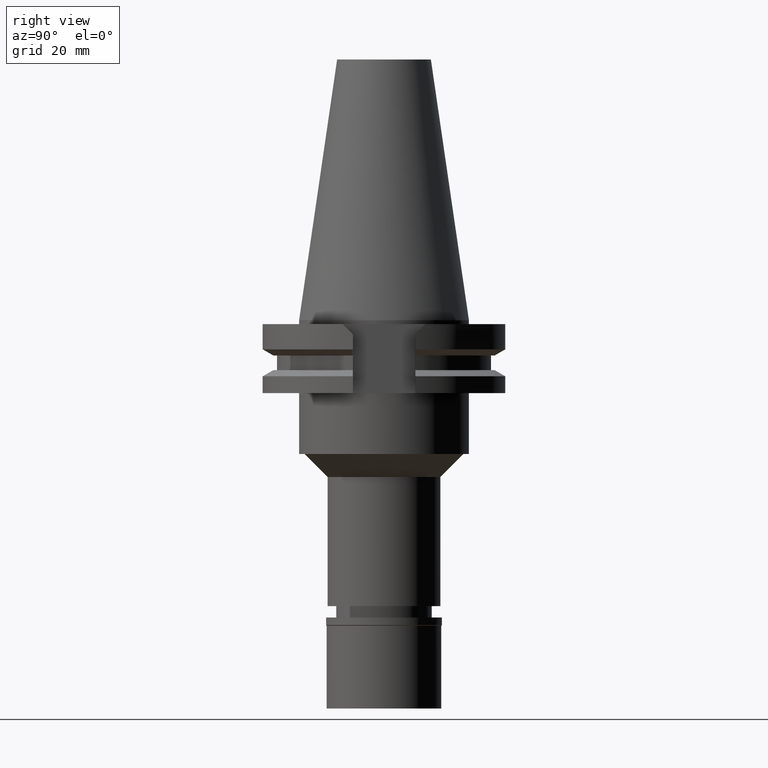
[diagram: clean part render]
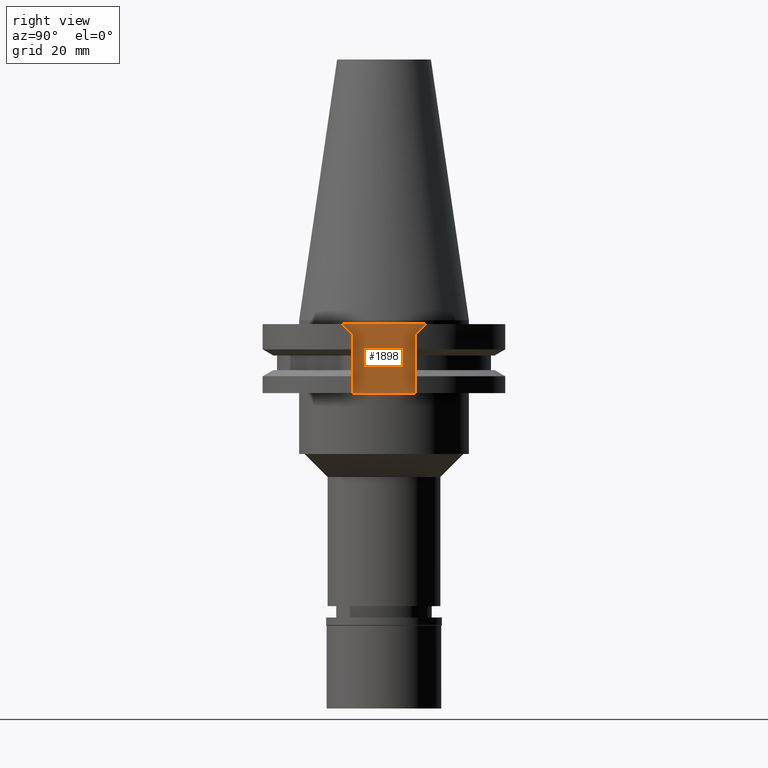
[diagram: same view with one face highlighted and labeled with its STEP entity id]
A machine part, right view. The second image highlights one B-rep face of the part: STEP entity #1898.
In plain terms, the highlighted planar face has unit normal (1, 0, 0).
Its self-contained STEP definition (entity closure, byte-faithful):
#1 = VECTOR ( 'NONE', #2464, 1000.000000000000000 ) ;
#49 = CARTESIAN_POINT ( 'NONE',  ( 22.57000000000000028, 8.189999999999999503, -3.700000000000000178 ) ) ;
#86 = CARTESIAN_POINT ( 'NONE',  ( 22.57000000000000028, -8.189999999999999503, -3.700000000000000178 ) ) ;
#159 = CARTESIAN_POINT ( 'NONE',  ( 22.57000000000000028, 8.189999999999999503, -19.05000000000000071 ) ) ;
#203 = CARTESIAN_POINT ( 'NONE',  ( 22.57000000000000028, 8.189999999999999503, -19.05000000000000071 ) ) ;
#251 = DIRECTION ( 'NONE',  ( 0.0000000000000000000, 0.0000000000000000000, 1.000000000000000000 ) ) ;
#265 = CARTESIAN_POINT ( 'NONE',  ( 22.57000000000000028, 10.89000000000000057, -1.000000000000000000 ) ) ;
#335 = EDGE_LOOP ( 'NONE', ( #1823, #2268, #515, #2763, #466, #1316 ) ) ;
#428 = EDGE_CURVE ( 'NONE', #1818, #1956, #2419, .T. ) ;
#463 = DIRECTION ( 'NONE',  ( 0.0000000000000000000, 1.000000000000000000, 0.0000000000000000000 ) ) ;
#466 = ORIENTED_EDGE ( 'NONE', *, *, #1431, .F. ) ;
#515 = ORIENTED_EDGE ( 'NONE', *, *, #428, .T. ) ;
#527 = CARTESIAN_POINT ( 'NONE',  ( 22.57000000000000028, -10.89000000000000057, -1.000000000000000000 ) ) ;
#638 = CARTESIAN_POINT ( 'NONE',  ( 22.57000000000000028, -8.189999999999999503, -3.700000000000000178 ) ) ;
#768 = AXIS2_PLACEMENT_3D ( 'NONE', #2543, #1284, #463 ) ;
#822 = DIRECTION ( 'NONE',  ( 0.0000000000000000000, -0.7071067811865474617, 0.7071067811865474617 ) ) ;
#954 = VECTOR ( 'NONE', #2075, 1000.000000000000000 ) ;
#1284 = DIRECTION ( 'NONE',  ( 1.000000000000000000, 0.0000000000000000000, 0.0000000000000000000 ) ) ;
#1316 = ORIENTED_EDGE ( 'NONE', *, *, #3044, .F. ) ;
#1354 = CARTESIAN_POINT ( 'NONE',  ( 22.57000000000000028, 10.89000000000000057, -1.000000000000000000 ) ) ;
#1431 = EDGE_CURVE ( 'NONE', #1997, #2466, #1534, .T. ) ;
#1498 = VERTEX_POINT ( 'NONE', #49 ) ;
#1531 = FACE_OUTER_BOUND ( 'NONE', #335, .T. ) ;
#1534 = LINE ( 'NONE', #2561, #2492 ) ;
#1722 = VECTOR ( 'NONE', #1904, 1000.000000000000000 ) ;
#1786 = PLANE ( 'NONE',  #768 ) ;
#1818 = VERTEX_POINT ( 'NONE', #265 ) ;
#1823 = ORIENTED_EDGE ( 'NONE', *, *, #3166, .F. ) ;
#1840 = CARTESIAN_POINT ( 'NONE',  ( 22.57000000000000028, -8.189999999999999503, -19.05000000000000071 ) ) ;
#1878 = EDGE_CURVE ( 'NONE', #1818, #1498, #2559, .T. ) ;
#1898 = ADVANCED_FACE ( 'NONE', ( #1531 ), #1786, .T. ) ;
#1904 = DIRECTION ( 'NONE',  ( 0.0000000000000000000, -1.000000000000000000, 0.0000000000000000000 ) ) ;
#1956 = VERTEX_POINT ( 'NONE', #527 ) ;
#1991 = LINE ( 'NONE', #203, #1 ) ;
#1997 = VERTEX_POINT ( 'NONE', #1840 ) ;
#2025 = LINE ( 'NONE', #3052, #954 ) ;
#2075 = DIRECTION ( 'NONE',  ( 0.0000000000000000000, 0.0000000000000000000, -1.000000000000000000 ) ) ;
#2268 = ORIENTED_EDGE ( 'NONE', *, *, #1878, .F. ) ;
#2316 = EDGE_CURVE ( 'NONE', #2466, #1956, #3163, .T. ) ;
#2419 = LINE ( 'NONE', #1354, #1722 ) ;
#2464 = DIRECTION ( 'NONE',  ( 0.0000000000000000000, -1.000000000000000000, 0.0000000000000000000 ) ) ;
#2466 = VERTEX_POINT ( 'NONE', #638 ) ;
#2492 = VECTOR ( 'NONE', #251, 1000.000000000000000 ) ;
#2543 = CARTESIAN_POINT ( 'NONE',  ( 22.57000000000000028, 0.0000000000000000000, 0.0000000000000000000 ) ) ;
#2559 = LINE ( 'NONE', #2769, #3245 ) ;
#2561 = CARTESIAN_POINT ( 'NONE',  ( 22.57000000000000028, -8.189999999999999503, -19.05000000000000071 ) ) ;
#2763 = ORIENTED_EDGE ( 'NONE', *, *, #2316, .F. ) ;
#2769 = CARTESIAN_POINT ( 'NONE',  ( 22.57000000000000028, 10.89000000000000057, -1.000000000000000000 ) ) ;
#2930 = VECTOR ( 'NONE', #822, 1000.000000000000114 ) ;
#2997 = VERTEX_POINT ( 'NONE', #159 ) ;
#3044 = EDGE_CURVE ( 'NONE', #2997, #1997, #1991, .T. ) ;
#3052 = CARTESIAN_POINT ( 'NONE',  ( 22.57000000000000028, 8.189999999999999503, -3.700000000000000178 ) ) ;
#3090 = DIRECTION ( 'NONE',  ( 0.0000000000000000000, -0.7071067811865474617, -0.7071067811865474617 ) ) ;
#3163 = LINE ( 'NONE', #86, #2930 ) ;
#3166 = EDGE_CURVE ( 'NONE', #1498, #2997, #2025, .T. ) ;
#3245 = VECTOR ( 'NONE', #3090, 1000.000000000000114 ) ;